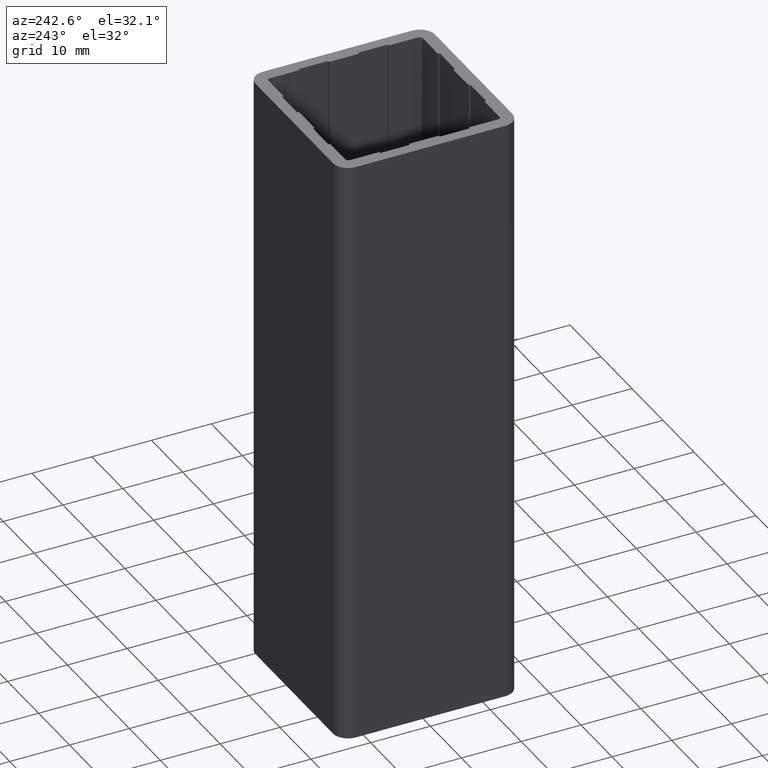
[diagram: clean part render]
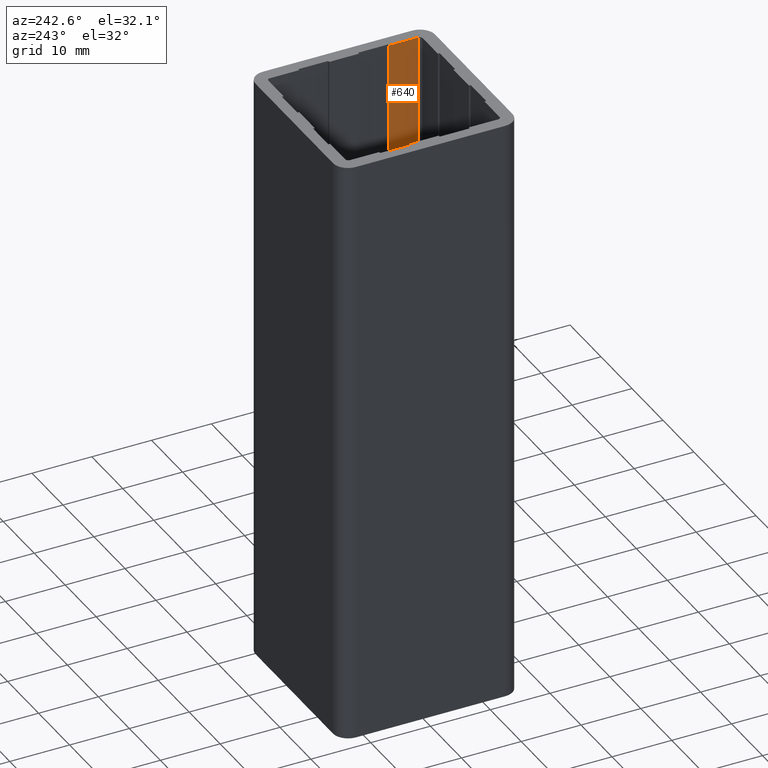
[diagram: same view with one face highlighted and labeled with its STEP entity id]
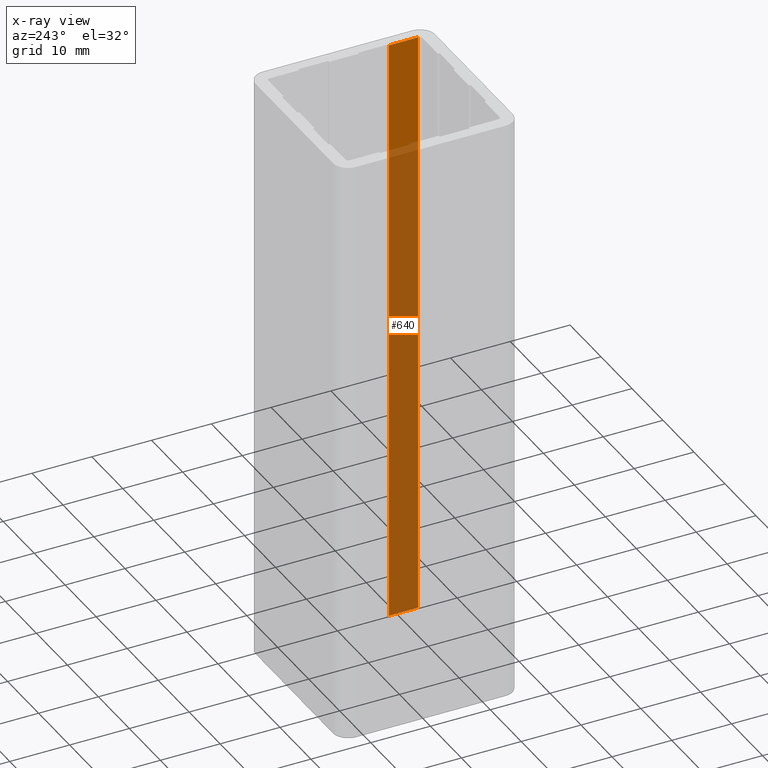
[diagram: x-ray of the same camera — body ghosted, the highlighted face saturated]
A machine part, auxiliary view. The second image highlights one B-rep face of the part: STEP entity #640.
The next image is the same camera in x-ray: the body ghosted, the highlighted face saturated — about 82% of this face is hidden behind the body in this view.
In plain terms, the highlighted planar face has unit normal (-1, 0, 0).
Its self-contained STEP definition (entity closure, byte-faithful):
#584=CARTESIAN_POINT('',(-2.099999999787997,-7.499999999243528,0.0));
#585=VERTEX_POINT('',#584);
#592=CARTESIAN_POINT('',(-2.099999999787997,-7.499999999243528,100.0));
#593=VERTEX_POINT('',#592);
#594=CARTESIAN_POINT('',(-2.099999999787997,-7.499999999243528,0.0));
#595=DIRECTION('',(0.0,0.0,1.0));
#596=VECTOR('',#595,100.0);
#597=LINE('',#594,#596);
#598=EDGE_CURVE('',#585,#593,#597,.T.);
#610=CARTESIAN_POINT('',(-2.099999999787997,-7.499999999243528,0.0));
#611=DIRECTION('',(-1.0,0.0,0.0));
#612=DIRECTION('',(0.0,-1.0,0.0));
#613=AXIS2_PLACEMENT_3D('',#610,#611,#612);
#614=PLANE('',#613);
#615=CARTESIAN_POINT('',(-2.099999999787883,-12.399999998748513,0.0));
#616=VERTEX_POINT('',#615);
#617=CARTESIAN_POINT('',(-2.099999999787997,-7.499999999243528,0.0));
#618=DIRECTION('',(0.0,-1.0,0.0));
#619=VECTOR('',#618,4.899999999504985);
#620=LINE('',#617,#619);
#621=EDGE_CURVE('',#585,#616,#620,.T.);
#622=ORIENTED_EDGE('',*,*,#621,.T.);
#623=CARTESIAN_POINT('',(-2.099999999787883,-12.399999998748513,100.0));
#624=VERTEX_POINT('',#623);
#625=CARTESIAN_POINT('',(-2.099999999787883,-12.399999998748513,0.0));
#626=DIRECTION('',(0.0,0.0,1.0));
#627=VECTOR('',#626,100.0);
#628=LINE('',#625,#627);
#629=EDGE_CURVE('',#616,#624,#628,.T.);
#630=ORIENTED_EDGE('',*,*,#629,.T.);
#631=CARTESIAN_POINT('',(-2.099999999787997,-7.499999999243528,100.0));
#632=DIRECTION('',(0.0,-1.0,0.0));
#633=VECTOR('',#632,4.899999999504985);
#634=LINE('',#631,#633);
#635=EDGE_CURVE('',#593,#624,#634,.T.);
#636=ORIENTED_EDGE('',*,*,#635,.F.);
#637=ORIENTED_EDGE('',*,*,#598,.F.);
#638=EDGE_LOOP('',(#622,#630,#636,#637));
#639=FACE_OUTER_BOUND('',#638,.T.);
#640=ADVANCED_FACE('',(#639),#614,.T.);